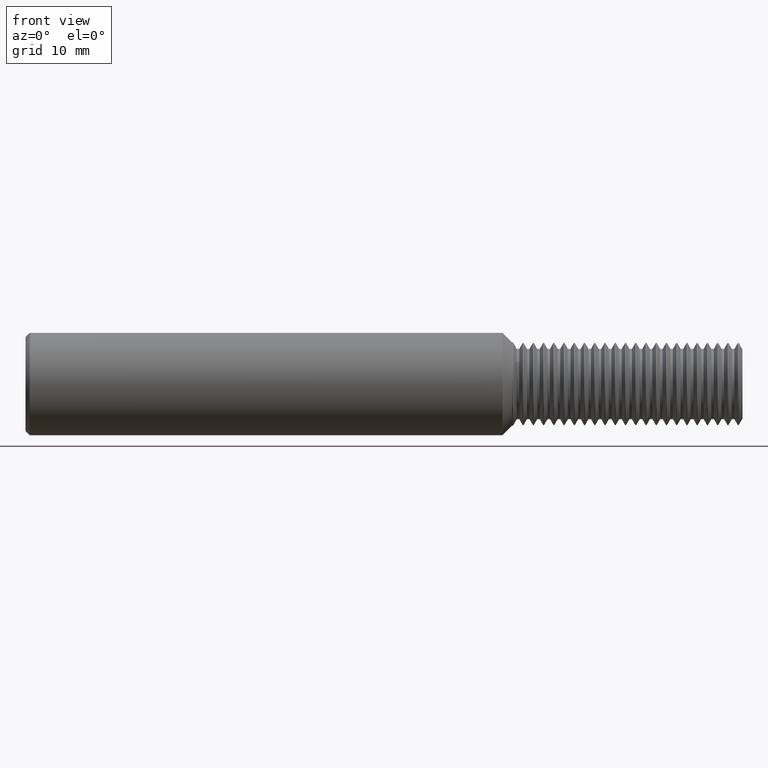
[diagram: clean part render]
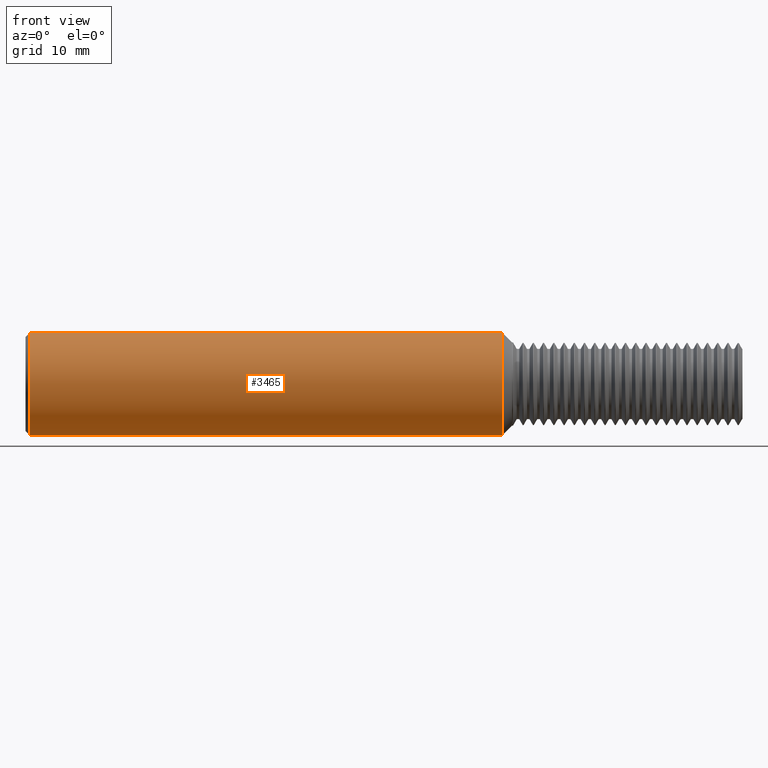
[diagram: same view with one face highlighted and labeled with its STEP entity id]
A machine part, front view. The second image highlights one B-rep face of the part: STEP entity #3465.
In plain terms, the highlighted cylindrical surface (partial cylindrical patch) has radius 6.3462 mm, axis along (-1, -0, -0).
Its self-contained STEP definition (entity closure, byte-faithful):
#58 = CARTESIAN_POINT ( 'NONE',  ( 0.02000000000000009409, 0.000000000000000000, 0.000000000000000000 ) ) ;
#153 = CARTESIAN_POINT ( 'NONE',  ( 2.328149999999999942, 3.059780027669661931E-17, -0.2498499999999999888 ) ) ;
#232 = VERTEX_POINT ( 'NONE', #2659 ) ;
#242 = DIRECTION ( 'NONE',  ( -1.000000000000000000, -0.000000000000000000, -0.000000000000000000 ) ) ;
#259 = DIRECTION ( 'NONE',  ( -1.000000000000000000, -0.000000000000000000, -0.000000000000000000 ) ) ;
#394 = DIRECTION ( 'NONE',  ( -1.000000000000000000, -0.000000000000000000, -0.000000000000000000 ) ) ;
#414 = DIRECTION ( 'NONE',  ( 1.000000000000000000, 0.000000000000000000, 0.000000000000000000 ) ) ;
#432 = ORIENTED_EDGE ( 'NONE', *, *, #2287, .F. ) ;
#583 = CARTESIAN_POINT ( 'NONE',  ( 0.000000000000000000, 0.000000000000000000, 0.2498499999999999888 ) ) ;
#627 = LINE ( 'NONE', #583, #4074 ) ;
#895 = EDGE_CURVE ( 'NONE', #232, #1049, #627, .T. ) ;
#1049 = VERTEX_POINT ( 'NONE', #2262 ) ;
#1189 = EDGE_CURVE ( 'NONE', #1049, #2815, #2931, .T. ) ;
#1269 = DIRECTION ( 'NONE',  ( 0.000000000000000000, 0.000000000000000000, -1.000000000000000000 ) ) ;
#1601 = AXIS2_PLACEMENT_3D ( 'NONE', #3597, #242, #2579 ) ;
#1744 = DIRECTION ( 'NONE',  ( -1.000000000000000000, -0.000000000000000000, -0.000000000000000000 ) ) ;
#1837 = CYLINDRICAL_SURFACE ( 'NONE', #3229, 0.2498499999999999888 ) ;
#2182 = FACE_OUTER_BOUND ( 'NONE', #4693, .T. ) ;
#2262 = CARTESIAN_POINT ( 'NONE',  ( 0.02000000000000009409, 3.059780027669661931E-17, 0.2498499999999999888 ) ) ;
#2287 = EDGE_CURVE ( 'NONE', #2342, #2815, #2604, .T. ) ;
#2342 = VERTEX_POINT ( 'NONE', #153 ) ;
#2579 = DIRECTION ( 'NONE',  ( 0.000000000000000000, 0.000000000000000000, 1.000000000000000000 ) ) ;
#2604 = LINE ( 'NONE', #4085, #3216 ) ;
#2659 = CARTESIAN_POINT ( 'NONE',  ( 2.328149999999999942, 0.000000000000000000, 0.2498499999999999888 ) ) ;
#2815 = VERTEX_POINT ( 'NONE', #4459 ) ;
#2931 = CIRCLE ( 'NONE', #4708, 0.2498499999999999888 ) ;
#3182 = ORIENTED_EDGE ( 'NONE', *, *, #895, .T. ) ;
#3216 = VECTOR ( 'NONE', #394, 39.37007874015748143 ) ;
#3229 = AXIS2_PLACEMENT_3D ( 'NONE', #4027, #259, #4761 ) ;
#3465 = ADVANCED_FACE ( 'NONE', ( #2182 ), #1837, .T. ) ;
#3597 = CARTESIAN_POINT ( 'NONE',  ( 2.328149999999999942, 0.000000000000000000, 0.000000000000000000 ) ) ;
#3901 = ORIENTED_EDGE ( 'NONE', *, *, #4100, .T. ) ;
#4027 = CARTESIAN_POINT ( 'NONE',  ( 0.000000000000000000, 0.000000000000000000, 0.000000000000000000 ) ) ;
#4074 = VECTOR ( 'NONE', #1744, 39.37007874015748143 ) ;
#4085 = CARTESIAN_POINT ( 'NONE',  ( 0.000000000000000000, 3.059780027669661931E-17, -0.2498499999999999888 ) ) ;
#4100 = EDGE_CURVE ( 'NONE', #2342, #232, #4258, .T. ) ;
#4258 = CIRCLE ( 'NONE', #1601, 0.2498499999999999888 ) ;
#4459 = CARTESIAN_POINT ( 'NONE',  ( 0.02000000000000009409, 0.000000000000000000, -0.2498499999999999888 ) ) ;
#4496 = ORIENTED_EDGE ( 'NONE', *, *, #1189, .T. ) ;
#4693 = EDGE_LOOP ( 'NONE', ( #432, #3901, #3182, #4496 ) ) ;
#4708 = AXIS2_PLACEMENT_3D ( 'NONE', #58, #414, #1269 ) ;
#4761 = DIRECTION ( 'NONE',  ( 0.000000000000000000, 0.000000000000000000, 1.000000000000000000 ) ) ;